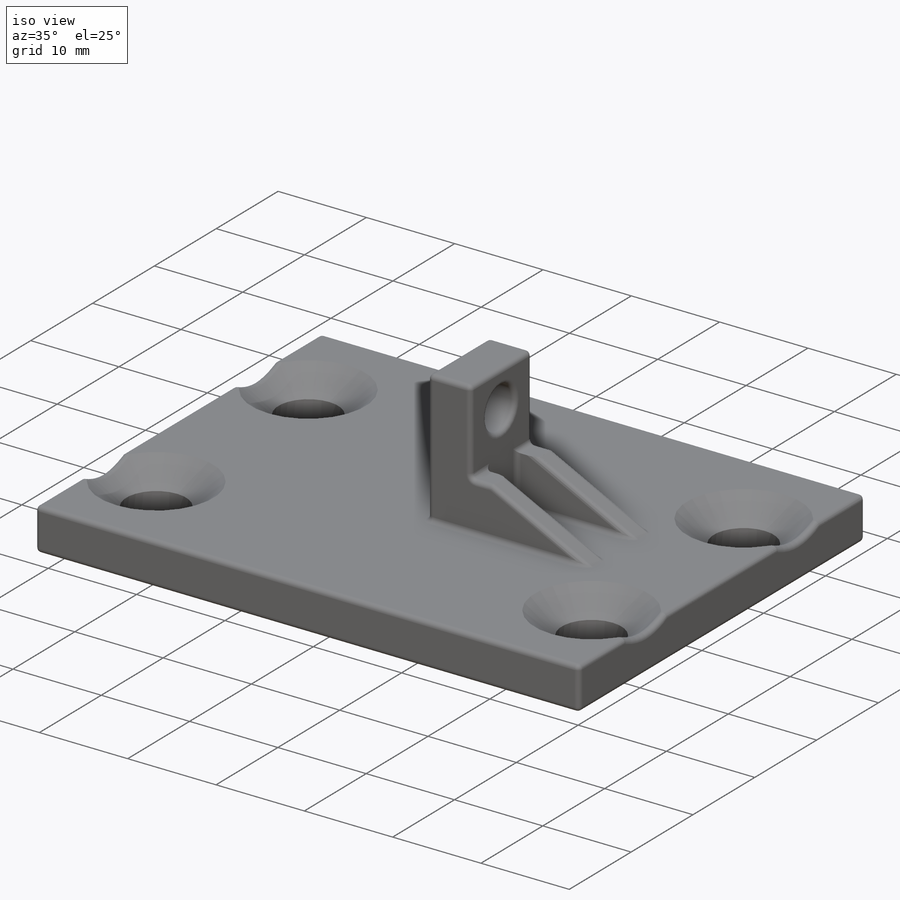
[diagram: iso view]
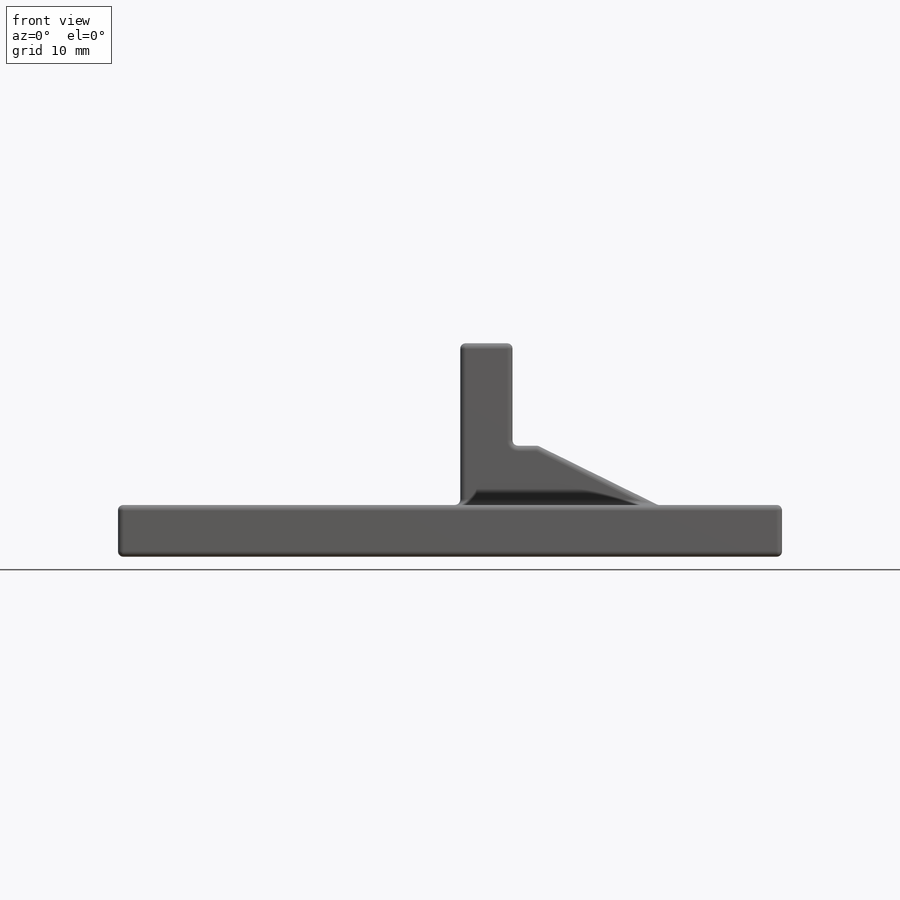
[diagram: front view]
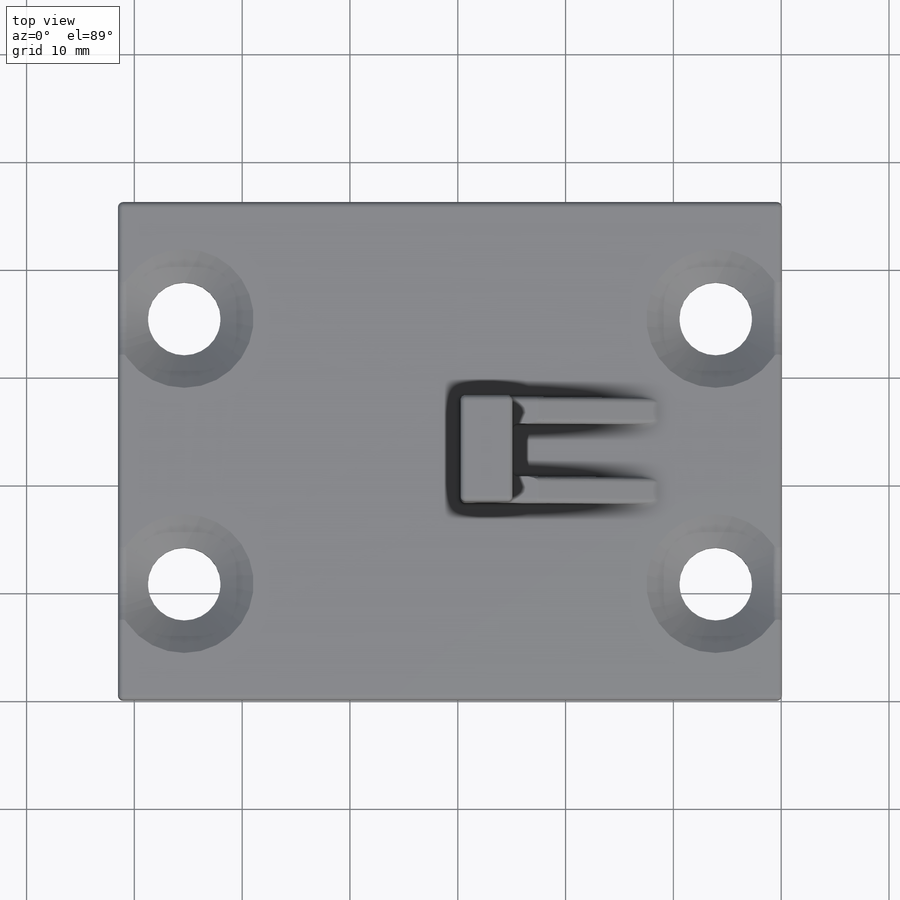
[diagram: top view]
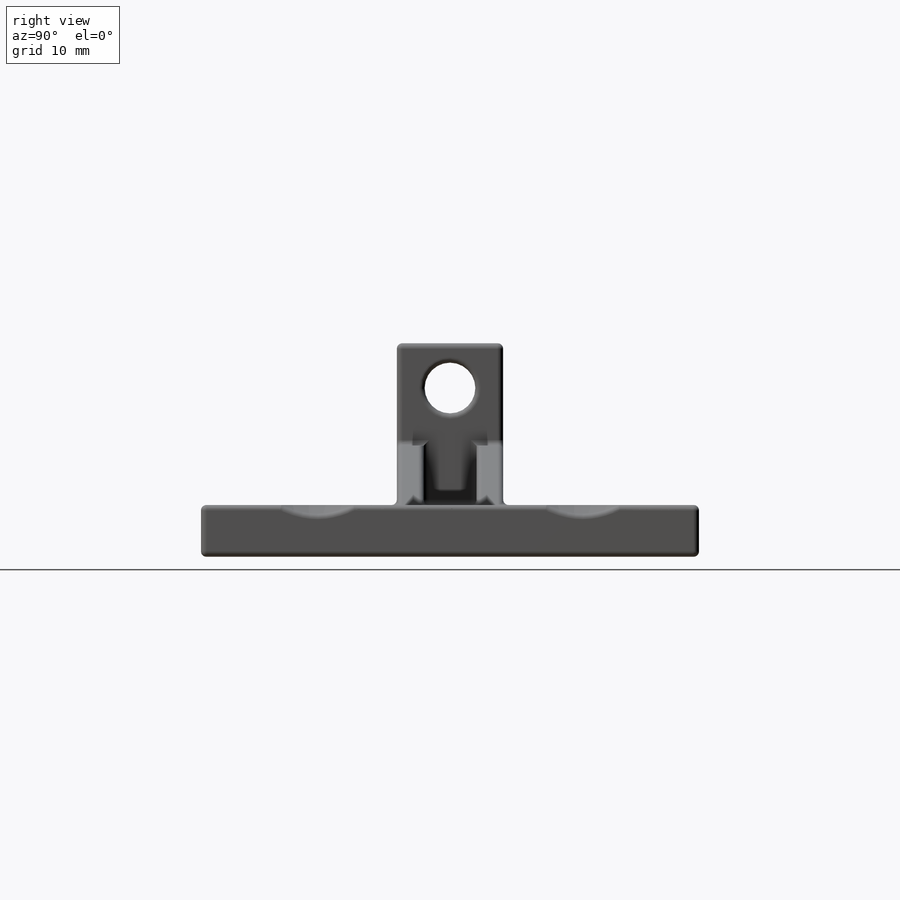
[diagram: right view]
SOLIDWORKS PART (.sldprt)
format: sldprt  version: not decoded by parser v0  size: 474,624 bytes
history: native  units: mm
features: sketch x8, extrude x3, cut_extrude x2, material x1, hole x1, fillet x1 (+13 scaffold rows collapsed)
feature tree (29):
  scaffold x13  (default folders/planes/origin — collapsed)
  material  "Material <not specified>"
  sketch  "Sketch1"  dims[D1=61.6mm D2=46.2mm]
  extrude  "Boss-Extrude1"  Depth=4.8mm
  sketch  "Sketch2"  dims[c1.D2=6.3mm c1.D1=18.3mm c2.D2=43.0mm c2.D1=18.3mm c2.D3=43.0mm c3.D1=43.0mm c3.D3=18.3mm]
  hole  "CSK for 1/4 Flat Head Machine Screw (100)1"  Diameter=6.7564mm Depth=10mm
  sketch  "Sketch4"
  sketch  "Sketch3"  dims[hole-wizard template sketch: 39 standard entries collapsed; hole parameters kept: c13.Hole Dia.=6.7564mm c13.Hole Depth=10.0mm c13.Near C'Sink Dia.=12.8778mm c13.D4=~33.297463mm c13.Near C'Sink Angle=100.0deg c14.D5=~14.816244mm c14.Drill Angle=118.0deg]
  sketch  "Sketch5"  dims[c1.D1=25.0mm c1.D2=4.85mm c1.D3=9.86mm c2.D1=25.0mm]
  extrude  "Boss-Extrude2"  Depth=15mm
  sketch  "Sketch6"  dims[D1=4.7mm D2=1.8mm]
  cut_extrude  "Cut-Extrude1"  [1 undecoded]
  sketch  "Sketch7"  dims[D1=2.35mm D2=13.5mm D3=5.5mm]
  extrude  "Boss-Extrude3"  [1 undecoded]
  sketch  "Sketch8"  dims[D1=4.9mm]
  cut_extrude  "Cut-Extrude2"  [1 undecoded]
  fillet  "Fillet3"  Radius=0.5mm
decode coverage: 11 of 15 modeling features carry decoded parameters
note: ~ marks probable driven/reference dimensions
note: 3 parameter values undecoded
summary: no parameter record found for 3 features
note: suppression state not decoded; provenance and decode notes live in map.json
